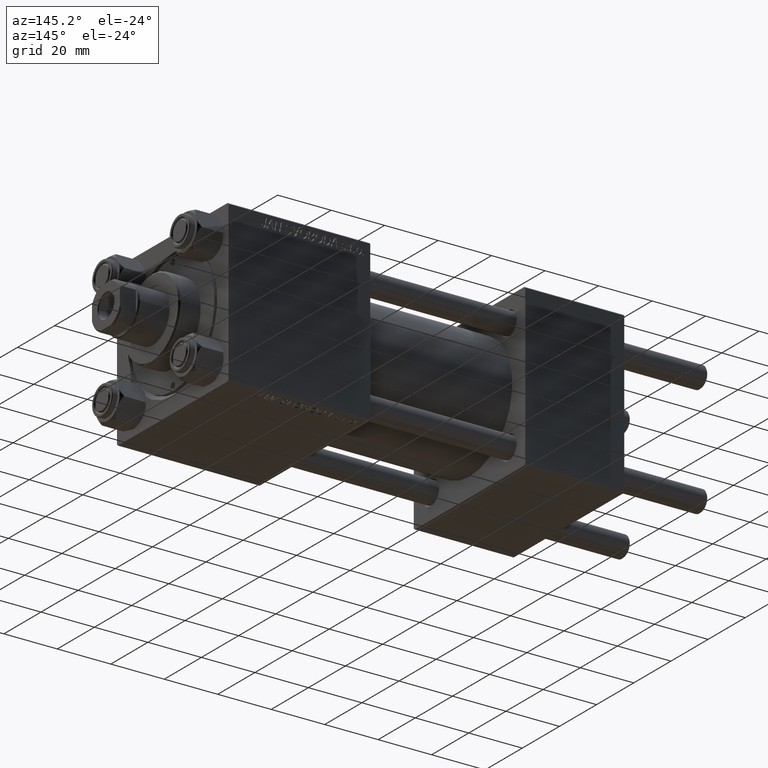
[diagram: clean part render]
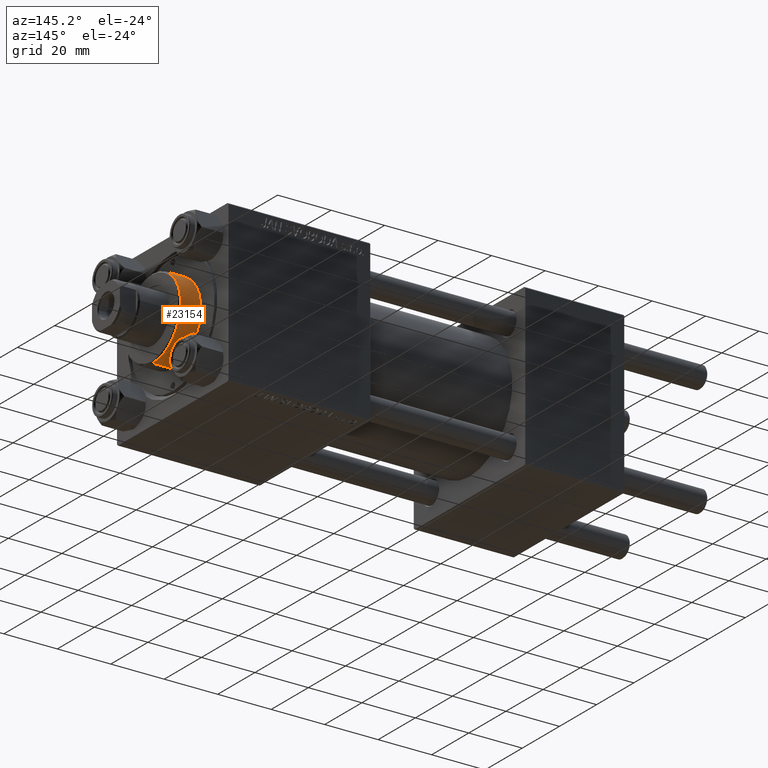
[diagram: same view with one face highlighted and labeled with its STEP entity id]
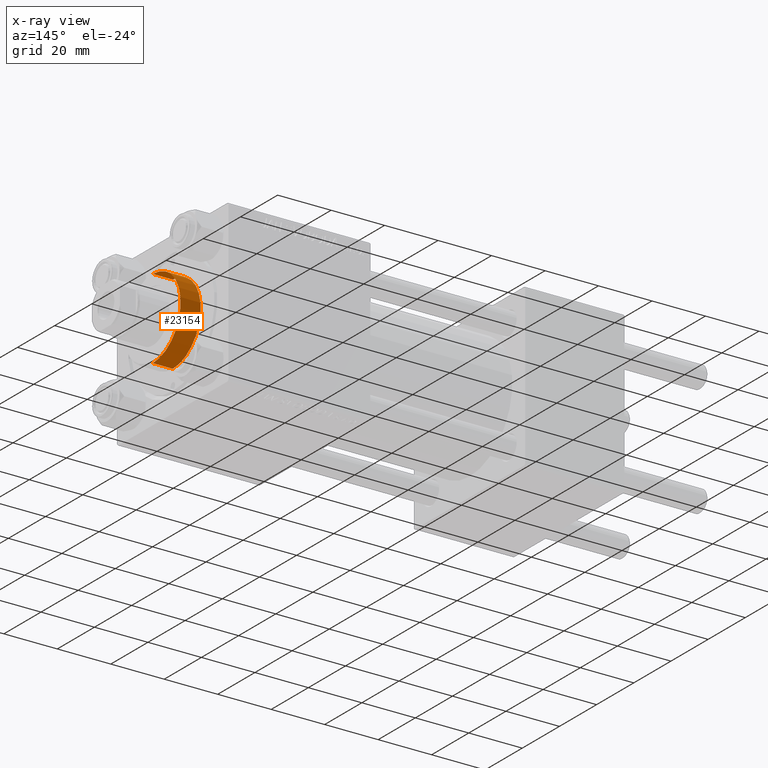
[diagram: x-ray of the same camera — body ghosted, the highlighted face saturated]
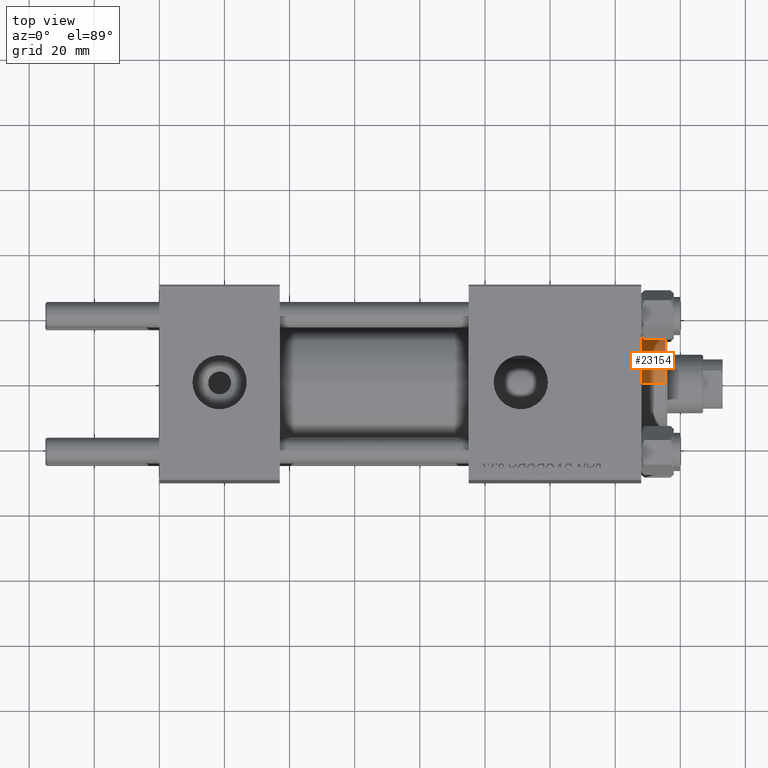
[diagram: same view with one face highlighted and labeled with its STEP entity id]
A machine part, auxiliary view. The second image highlights one B-rep face of the part: STEP entity #23154.
The next image is the same camera in x-ray: the body ghosted, the highlighted face saturated — about 0% of this face is hidden behind the body in this view.
A second angle (top view) of the same face is appended — the face is thin or edge-on in the first view.
In plain terms, the highlighted cylindrical surface (partial cylindrical patch) has radius 15 mm, axis along (-1, -0, 0).
Its self-contained STEP definition (entity closure, byte-faithful):
#545 = CARTESIAN_POINT ( 'NONE',  ( -15.00000000000000000, 0.000000000000000000, 36.69999999999999574 ) ) ;
#1123 = CARTESIAN_POINT ( 'NONE',  ( 15.00000000000000000, 1.836970198721029589E-15, 28.69999999999999929 ) ) ;
#3051 = AXIS2_PLACEMENT_3D ( 'NONE', #8954, #31736, #36024 ) ;
#4656 = VECTOR ( 'NONE', #29217, 1000.000000000000000 ) ;
#7429 = VERTEX_POINT ( 'NONE', #48640 ) ;
#8954 = CARTESIAN_POINT ( 'NONE',  ( 0.000000000000000000, 0.000000000000000000, 36.20000000000000284 ) ) ;
#9718 = DIRECTION ( 'NONE',  ( 1.000000000000000000, 0.000000000000000000, 0.000000000000000000 ) ) ;
#10973 = EDGE_LOOP ( 'NONE', ( #38121, #26778, #30261, #41242 ) ) ;
#11431 = LINE ( 'NONE', #545, #44881 ) ;
#11638 = FACE_OUTER_BOUND ( 'NONE', #10973, .T. ) ;
#13861 = EDGE_CURVE ( 'NONE', #15650, #33103, #25286, .T. ) ;
#14700 = CARTESIAN_POINT ( 'NONE',  ( 0.000000000000000000, 0.000000000000000000, 36.69999999999999574 ) ) ;
#15591 = AXIS2_PLACEMENT_3D ( 'NONE', #28698, #44390, #9718 ) ;
#15650 = VERTEX_POINT ( 'NONE', #1123 ) ;
#18111 = CARTESIAN_POINT ( 'NONE',  ( -15.00000000000000000, 0.000000000000000000, 28.69999999999999929 ) ) ;
#19229 = DIRECTION ( 'NONE',  ( -0.000000000000000000, -0.000000000000000000, -1.000000000000000000 ) ) ;
#19720 = EDGE_CURVE ( 'NONE', #7429, #33103, #11431, .T. ) ;
#21610 = CARTESIAN_POINT ( 'NONE',  ( 15.00000000000000000, 1.836970198721029589E-15, 36.69999999999999574 ) ) ;
#22363 = AXIS2_PLACEMENT_3D ( 'NONE', #14700, #19229, #26330 ) ;
#22994 = CARTESIAN_POINT ( 'NONE',  ( 15.00000000000000000, 1.836970198721029589E-15, 36.20000000000000284 ) ) ;
#23154 = ADVANCED_FACE ( 'NONE', ( #11638 ), #45578, .T. ) ;
#24880 = EDGE_CURVE ( 'NONE', #46981, #15650, #41109, .T. ) ;
#25286 = CIRCLE ( 'NONE', #15591, 15.00000000000000000 ) ;
#25507 = EDGE_CURVE ( 'NONE', #7429, #46981, #48317, .T. ) ;
#26330 = DIRECTION ( 'NONE',  ( -1.000000000000000000, 0.000000000000000000, 0.000000000000000000 ) ) ;
#26778 = ORIENTED_EDGE ( 'NONE', *, *, #24880, .T. ) ;
#28698 = CARTESIAN_POINT ( 'NONE',  ( 0.000000000000000000, 0.000000000000000000, 28.69999999999999929 ) ) ;
#29217 = DIRECTION ( 'NONE',  ( -0.000000000000000000, -0.000000000000000000, -1.000000000000000000 ) ) ;
#30261 = ORIENTED_EDGE ( 'NONE', *, *, #13861, .T. ) ;
#31736 = DIRECTION ( 'NONE',  ( 0.000000000000000000, 0.000000000000000000, -1.000000000000000000 ) ) ;
#33103 = VERTEX_POINT ( 'NONE', #18111 ) ;
#36024 = DIRECTION ( 'NONE',  ( 1.000000000000000000, 0.000000000000000000, 0.000000000000000000 ) ) ;
#38121 = ORIENTED_EDGE ( 'NONE', *, *, #25507, .T. ) ;
#41109 = LINE ( 'NONE', #21610, #4656 ) ;
#41242 = ORIENTED_EDGE ( 'NONE', *, *, #19720, .F. ) ;
#42075 = DIRECTION ( 'NONE',  ( -0.000000000000000000, -0.000000000000000000, -1.000000000000000000 ) ) ;
#44390 = DIRECTION ( 'NONE',  ( 0.000000000000000000, 0.000000000000000000, 1.000000000000000000 ) ) ;
#44881 = VECTOR ( 'NONE', #42075, 1000.000000000000000 ) ;
#45578 = CYLINDRICAL_SURFACE ( 'NONE', #22363, 15.00000000000000000 ) ;
#46981 = VERTEX_POINT ( 'NONE', #22994 ) ;
#48317 = CIRCLE ( 'NONE', #3051, 15.00000000000000000 ) ;
#48640 = CARTESIAN_POINT ( 'NONE',  ( -15.00000000000000000, 0.000000000000000000, 36.20000000000000284 ) ) ;